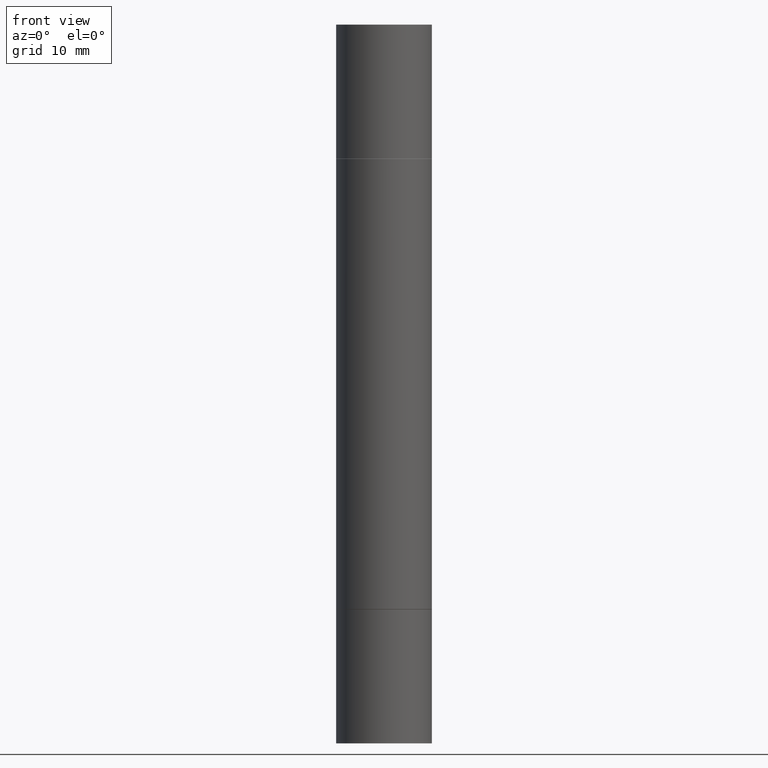
[diagram: clean part render]
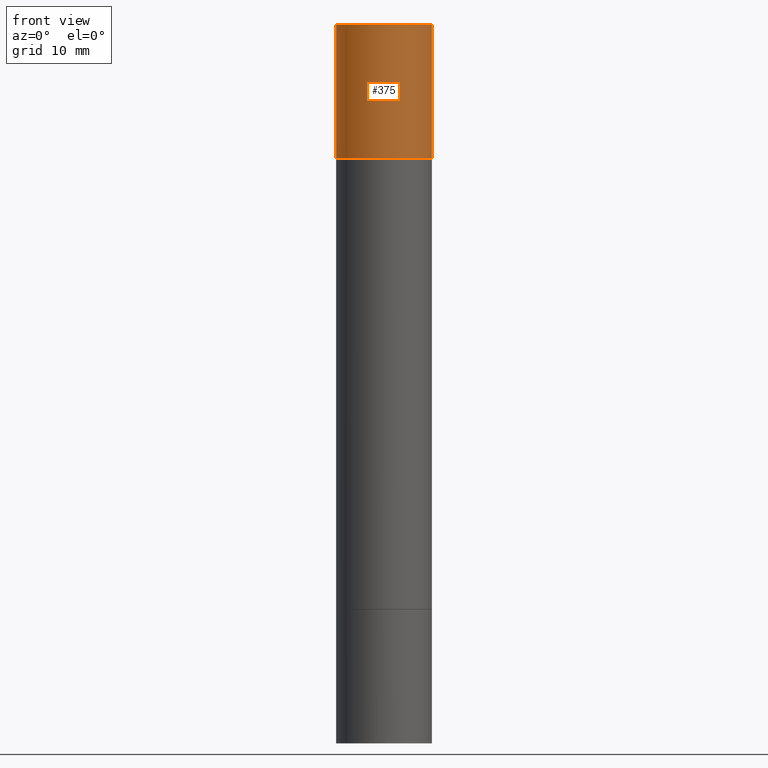
[diagram: same view with one face highlighted and labeled with its STEP entity id]
A machine part, front view. The second image highlights one B-rep face of the part: STEP entity #375.
In plain terms, the highlighted cylindrical surface (partial cylindrical patch) has radius 5 mm, axis along (-0, -0, -1).
Its self-contained STEP definition (entity closure, byte-faithful):
#8 = ORIENTED_EDGE ( 'NONE', *, *, #22, .T. ) ;
#9 = CYLINDRICAL_SURFACE ( 'NONE', #646, 0.1968500000000000250 ) ;
#22 = EDGE_CURVE ( 'NONE', #292, #430, #228, .T. ) ;
#50 = CARTESIAN_POINT ( 'NONE',  ( 0.1968500000000000250, -3.297797043002877729E-15, -0.5511999999999995792 ) ) ;
#75 = EDGE_CURVE ( 'NONE', #292, #364, #345, .T. ) ;
#100 = VECTOR ( 'NONE', #554, 39.37007874015748143 ) ;
#123 = EDGE_CURVE ( 'NONE', #364, #614, #558, .T. ) ;
#136 = CARTESIAN_POINT ( 'NONE',  ( 5.873037884934223228E-29, -1.923200839900336120E-15, -0.5511999999999995792 ) ) ;
#138 = DIRECTION ( 'NONE',  ( 1.000000000000000000, -6.982962677686265922E-15, 0.000000000000000000 ) ) ;
#224 = DIRECTION ( 'NONE',  ( 1.000000000000000000, -6.982962677686267499E-15, 0.000000000000000000 ) ) ;
#228 = LINE ( 'NONE', #384, #665 ) ;
#243 = DIRECTION ( 'NONE',  ( 2.445468806185136597E-29, 3.492890411551752677E-15, 1.000000000000000000 ) ) ;
#275 = CIRCLE ( 'NONE', #582, 0.1968500000000000250 ) ;
#281 = ORIENTED_EDGE ( 'NONE', *, *, #75, .F. ) ;
#290 = ORIENTED_EDGE ( 'NONE', *, *, #487, .T. ) ;
#292 = VERTEX_POINT ( 'NONE', #587 ) ;
#335 = DIRECTION ( 'NONE',  ( 1.000000000000000000, -6.982962677686267499E-15, 0.000000000000000000 ) ) ;
#345 = CIRCLE ( 'NONE', #370, 0.1968500000000000250 ) ;
#352 = ORIENTED_EDGE ( 'NONE', *, *, #123, .F. ) ;
#364 = VERTEX_POINT ( 'NONE', #578 ) ;
#370 = AXIS2_PLACEMENT_3D ( 'NONE', #390, #608, #138 ) ;
#375 = ADVANCED_FACE ( 'NONE', ( #436 ), #9, .T. ) ;
#384 = CARTESIAN_POINT ( 'NONE',  ( -0.1968500000000000250, -8.961237421421697861E-15, -2.952799999999998981 ) ) ;
#390 = CARTESIAN_POINT ( 'NONE',  ( 7.220980290903470182E-29, 2.080354946989631982E-18, 5.463695987328526437E-16 ) ) ;
#414 = CARTESIAN_POINT ( 'NONE',  ( -0.1968500000000000250, 3.899287883846532010E-16, -0.5511999999999995792 ) ) ;
#430 = VERTEX_POINT ( 'NONE', #414 ) ;
#436 = FACE_OUTER_BOUND ( 'NONE', #662, .T. ) ;
#449 = CARTESIAN_POINT ( 'NONE',  ( 0.1968500000000000250, -1.168632265538556569E-14, -2.952799999999998981 ) ) ;
#469 = CARTESIAN_POINT ( 'NONE',  ( 0.000000000000000000, -1.031172645228302408E-14, -2.952799999999998981 ) ) ;
#487 = EDGE_CURVE ( 'NONE', #430, #614, #275, .T. ) ;
#492 = DIRECTION ( 'NONE',  ( -2.445468806185136877E-29, -3.492890411551753071E-15, -1.000000000000000000 ) ) ;
#554 = DIRECTION ( 'NONE',  ( -2.445468806185136877E-29, -3.492890411551753071E-15, -1.000000000000000000 ) ) ;
#558 = LINE ( 'NONE', #449, #100 ) ;
#578 = CARTESIAN_POINT ( 'NONE',  ( 0.1968500000000000250, -1.372515848155552113E-15, 5.463695987328526437E-16 ) ) ;
#582 = AXIS2_PLACEMENT_3D ( 'NONE', #136, #243, #335 ) ;
#587 = CARTESIAN_POINT ( 'NONE',  ( -0.1968500000000000250, 3.899287883846529545E-16, 5.463695987328561936E-16 ) ) ;
#608 = DIRECTION ( 'NONE',  ( 2.445468806185136597E-29, 3.492890411551752677E-15, 1.000000000000000000 ) ) ;
#614 = VERTEX_POINT ( 'NONE', #50 ) ;
#632 = DIRECTION ( 'NONE',  ( -2.445468806185136597E-29, -3.492890411551752677E-15, -1.000000000000000000 ) ) ;
#646 = AXIS2_PLACEMENT_3D ( 'NONE', #469, #632, #224 ) ;
#662 = EDGE_LOOP ( 'NONE', ( #281, #8, #290, #352 ) ) ;
#665 = VECTOR ( 'NONE', #492, 39.37007874015748143 ) ;